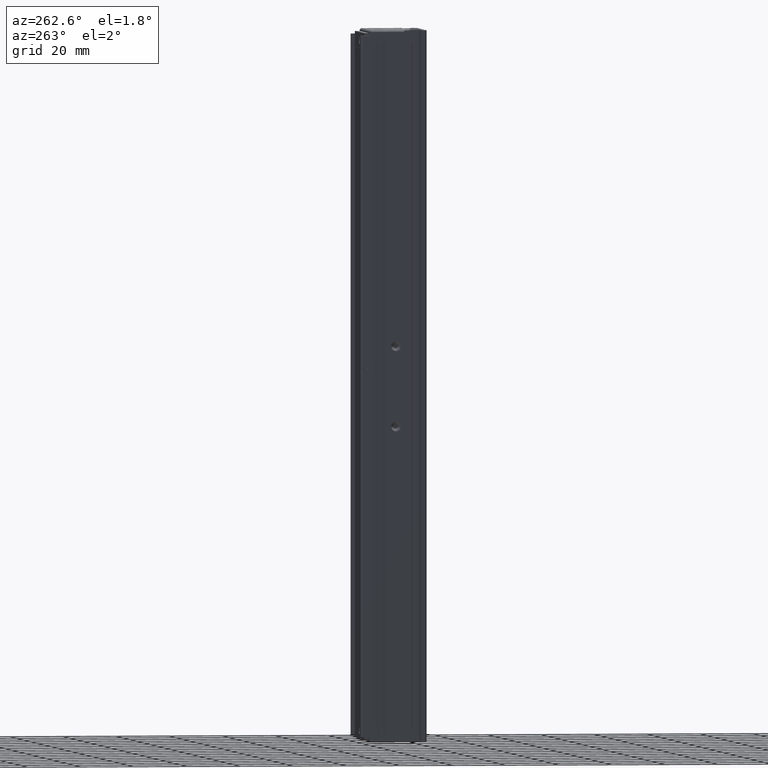
[diagram: clean part render]
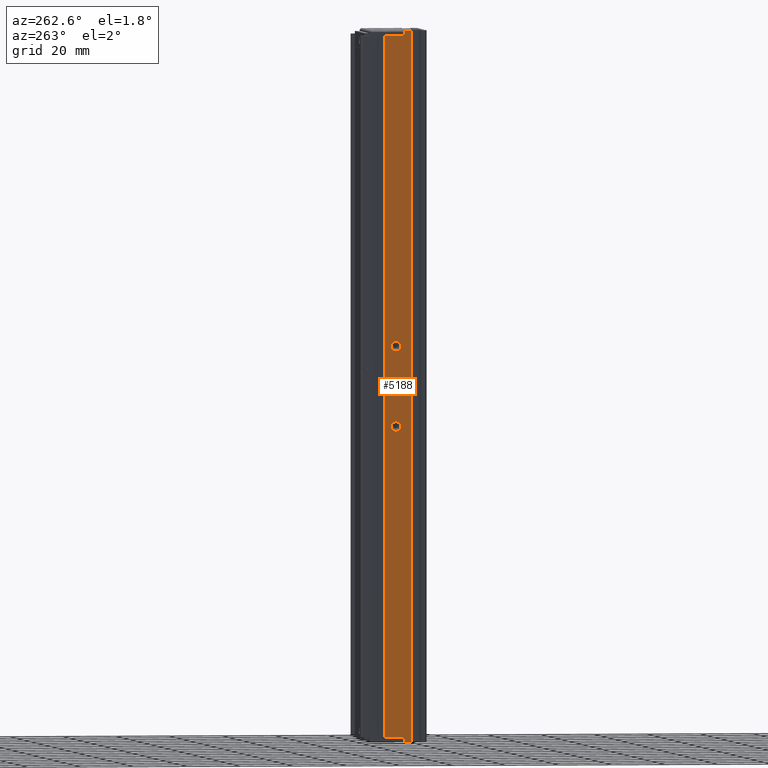
[diagram: same view with one face highlighted and labeled with its STEP entity id]
A machine part, auxiliary view. The second image highlights one B-rep face of the part: STEP entity #5188.
In plain terms, the highlighted planar face has unit normal (-1, 0, 0).
Its self-contained STEP definition (entity closure, byte-faithful):
#429 = CARTESIAN_POINT ( 'NONE',  ( 25.92537974684906700, 22.39594479660386700, -100.0000000000000000 ) ) ;
#459 = CARTESIAN_POINT ( 'NONE',  ( 25.92537974683541800, 19.19594479660386500, 18.00000000000000400 ) ) ;
#581 = DIRECTION ( 'NONE',  ( 0.0000000000000000000, 0.0000000000000000000, 1.000000000000000000 ) ) ;
#4492 = CARTESIAN_POINT ( 'NONE',  ( 25.92537974683541800, 26.69594479660386800, 18.00000000000000400 ) ) ;
#4675 = EDGE_CURVE ( 'NONE', #41065, #41264, #16763, .T. ) ;
#4743 = DIRECTION ( 'NONE',  ( 0.0000000000000000000, 0.0000000000000000000, 1.000000000000000000 ) ) ;
#5023 = AXIS2_PLACEMENT_3D ( 'NONE', #51852, #26229, #581 ) ;
#5188 = ADVANCED_FACE ( 'NONE', ( #54700, #30595, #9145 ), #14505, .T. ) ;
#5320 = VECTOR ( 'NONE', #16393, 1000.000000000000000 ) ;
#5327 = VERTEX_POINT ( 'NONE', #47865 ) ;
#5469 = AXIS2_PLACEMENT_3D ( 'NONE', #18955, #48870, #23227 ) ;
#5953 = VECTOR ( 'NONE', #20366, 1000.000000000000000 ) ;
#8775 = DIRECTION ( 'NONE',  ( -0.0000000000000000000, -0.0000000000000000000, -1.000000000000000000 ) ) ;
#9145 = FACE_BOUND ( 'NONE', #17623, .T. ) ;
#9699 = CARTESIAN_POINT ( 'NONE',  ( 25.92537974683541800, 7.083797468354437600, -248.0000000000000000 ) ) ;
#10662 = VERTEX_POINT ( 'NONE', #459 ) ;
#11270 = CARTESIAN_POINT ( 'NONE',  ( 25.92537974684906700, 22.39594479660386700, -98.20000000001073200 ) ) ;
#13320 = VERTEX_POINT ( 'NONE', #32572 ) ;
#14339 = VECTOR ( 'NONE', #44135, 1000.000000000000000 ) ;
#14505 = PLANE ( 'NONE',  #33808 ) ;
#15142 = EDGE_CURVE ( 'NONE', #41264, #5327, #24109, .T. ) ;
#15291 = DIRECTION ( 'NONE',  ( 0.0000000000000000000, 0.0000000000000000000, 1.000000000000000000 ) ) ;
#15453 = CARTESIAN_POINT ( 'NONE',  ( 25.92537974679222400, 22.39594479660386700, -131.8000000000734200 ) ) ;
#15717 = EDGE_CURVE ( 'NONE', #13320, #19591, #40140, .T. ) ;
#16071 = LINE ( 'NONE', #52136, #26056 ) ;
#16393 = DIRECTION ( 'NONE',  ( -0.0000000000000000000, -1.000000000000000000, 0.0000000000000000000 ) ) ;
#16763 = LINE ( 'NONE', #24086, #5320 ) ;
#17623 = EDGE_LOOP ( 'NONE', ( #40731, #31506 ) ) ;
#17881 = ORIENTED_EDGE ( 'NONE', *, *, #4675, .T. ) ;
#18190 = VERTEX_POINT ( 'NONE', #40833 ) ;
#18916 = CIRCLE ( 'NONE', #41594, 1.799999999989268400 ) ;
#18955 = CARTESIAN_POINT ( 'NONE',  ( 25.92537974679222400, 22.39594479660386700, -130.0000000000000000 ) ) ;
#19200 = CARTESIAN_POINT ( 'NONE',  ( 25.92537974684906700, 22.39594479660386700, -101.7999999999892700 ) ) ;
#19382 = CIRCLE ( 'NONE', #5023, 1.799999999989268400 ) ;
#19591 = VERTEX_POINT ( 'NONE', #39534 ) ;
#19749 = ORIENTED_EDGE ( 'NONE', *, *, #40513, .T. ) ;
#20366 = DIRECTION ( 'NONE',  ( 0.0000000000000000000, 0.0000000000000000000, 1.000000000000000000 ) ) ;
#20467 = LINE ( 'NONE', #38758, #40536 ) ;
#20602 = CARTESIAN_POINT ( 'NONE',  ( 25.92537974683541800, 16.49594479660387200, 18.00000000000000400 ) ) ;
#21220 = ORIENTED_EDGE ( 'NONE', *, *, #31855, .T. ) ;
#21269 = CARTESIAN_POINT ( 'NONE',  ( 25.92537974679222400, 22.39594479660386700, -130.0000000000000000 ) ) ;
#21525 = DIRECTION ( 'NONE',  ( 0.0000000000000000000, 1.000000000000000000, -0.0000000000000000000 ) ) ;
#21943 = VERTEX_POINT ( 'NONE', #11270 ) ;
#22257 = ORIENTED_EDGE ( 'NONE', *, *, #15142, .T. ) ;
#23227 = DIRECTION ( 'NONE',  ( 0.0000000000000000000, 0.0000000000000000000, 1.000000000000000000 ) ) ;
#23542 = VERTEX_POINT ( 'NONE', #15453 ) ;
#24086 = CARTESIAN_POINT ( 'NONE',  ( 25.92537974683541800, 7.083797468354437600, -246.0000000000000000 ) ) ;
#24109 = LINE ( 'NONE', #50836, #46876 ) ;
#24816 = CARTESIAN_POINT ( 'NONE',  ( 25.92537974683541800, 7.083797468354437600, 18.00000000000000400 ) ) ;
#25568 = DIRECTION ( 'NONE',  ( 0.0000000000000000000, 0.0000000000000000000, 1.000000000000000000 ) ) ;
#26056 = VECTOR ( 'NONE', #35273, 1000.000000000000000 ) ;
#26229 = DIRECTION ( 'NONE',  ( 1.000000000000000000, -0.0000000000000000000, -0.0000000000000000000 ) ) ;
#26376 = AXIS2_PLACEMENT_3D ( 'NONE', #21269, #51196, #25568 ) ;
#26938 = CIRCLE ( 'NONE', #26376, 1.800000000073409500 ) ;
#27344 = EDGE_CURVE ( 'NONE', #51611, #21943, #19382, .T. ) ;
#30119 = CARTESIAN_POINT ( 'NONE',  ( 25.92537974683541800, 7.083797468354437600, 18.00000000000000400 ) ) ;
#30356 = VECTOR ( 'NONE', #8775, 1000.000000000000000 ) ;
#30375 = DIRECTION ( 'NONE',  ( 1.000000000000000000, -0.0000000000000000000, -0.0000000000000000000 ) ) ;
#30595 = FACE_BOUND ( 'NONE', #32354, .T. ) ;
#31506 = ORIENTED_EDGE ( 'NONE', *, *, #44115, .T. ) ;
#31855 = EDGE_CURVE ( 'NONE', #5327, #13320, #37099, .T. ) ;
#32354 = EDGE_LOOP ( 'NONE', ( #51929, #40026 ) ) ;
#32572 = CARTESIAN_POINT ( 'NONE',  ( 25.92537974683541800, 16.49594479660387200, -248.0000000000000000 ) ) ;
#32827 = ORIENTED_EDGE ( 'NONE', *, *, #39601, .T. ) ;
#33004 = VERTEX_POINT ( 'NONE', #43259 ) ;
#33459 = EDGE_LOOP ( 'NONE', ( #50107, #32827, #19749, #33630, #17881, #22257, #21220, #52650 ) ) ;
#33630 = ORIENTED_EDGE ( 'NONE', *, *, #53843, .T. ) ;
#33808 = AXIS2_PLACEMENT_3D ( 'NONE', #24816, #36590, #15291 ) ;
#34191 = CARTESIAN_POINT ( 'NONE',  ( 25.92537974683541800, 26.69594479660386800, -246.0000000000000000 ) ) ;
#35273 = DIRECTION ( 'NONE',  ( 0.0000000000000000000, -0.0000000000000000000, -1.000000000000000000 ) ) ;
#35573 = CARTESIAN_POINT ( 'NONE',  ( 25.92537974683541800, 19.19594479660386500, -246.0000000000000000 ) ) ;
#36590 = DIRECTION ( 'NONE',  ( -1.000000000000000000, 0.0000000000000000000, 0.0000000000000000000 ) ) ;
#37099 = LINE ( 'NONE', #9699, #14339 ) ;
#37815 = EDGE_CURVE ( 'NONE', #45716, #23542, #55024, .T. ) ;
#38758 = CARTESIAN_POINT ( 'NONE',  ( 25.92537974683542100, 35.69594479660387500, 16.00000000000000000 ) ) ;
#39534 = CARTESIAN_POINT ( 'NONE',  ( 25.92537974683541800, 16.49594479660387200, 18.00000000000000400 ) ) ;
#39601 = EDGE_CURVE ( 'NONE', #10662, #18190, #16071, .T. ) ;
#39857 = VECTOR ( 'NONE', #21525, 1000.000000000000000 ) ;
#40026 = ORIENTED_EDGE ( 'NONE', *, *, #27344, .T. ) ;
#40140 = LINE ( 'NONE', #20602, #5953 ) ;
#40513 = EDGE_CURVE ( 'NONE', #18190, #33004, #20467, .T. ) ;
#40536 = VECTOR ( 'NONE', #47348, 1000.000000000000000 ) ;
#40731 = ORIENTED_EDGE ( 'NONE', *, *, #37815, .T. ) ;
#40833 = CARTESIAN_POINT ( 'NONE',  ( 25.92537974683541800, 19.19594479660386500, 16.00000000000000000 ) ) ;
#41065 = VERTEX_POINT ( 'NONE', #34191 ) ;
#41200 = LINE ( 'NONE', #30119, #39857 ) ;
#41264 = VERTEX_POINT ( 'NONE', #35573 ) ;
#41594 = AXIS2_PLACEMENT_3D ( 'NONE', #429, #30375, #4743 ) ;
#43098 = LINE ( 'NONE', #4492, #30356 ) ;
#43259 = CARTESIAN_POINT ( 'NONE',  ( 25.92537974683541800, 26.69594479660386800, 16.00000000000000000 ) ) ;
#43422 = EDGE_CURVE ( 'NONE', #19591, #10662, #41200, .T. ) ;
#44115 = EDGE_CURVE ( 'NONE', #23542, #45716, #26938, .T. ) ;
#44135 = DIRECTION ( 'NONE',  ( -0.0000000000000000000, -1.000000000000000000, 0.0000000000000000000 ) ) ;
#45716 = VERTEX_POINT ( 'NONE', #46706 ) ;
#46706 = CARTESIAN_POINT ( 'NONE',  ( 25.92537974679222400, 22.39594479660386700, -128.1999999999266000 ) ) ;
#46876 = VECTOR ( 'NONE', #52258, 1000.000000000000000 ) ;
#47348 = DIRECTION ( 'NONE',  ( 0.0000000000000000000, 1.000000000000000000, 0.0000000000000000000 ) ) ;
#47865 = CARTESIAN_POINT ( 'NONE',  ( 25.92537974683541800, 19.19594479660386500, -248.0000000000000000 ) ) ;
#48870 = DIRECTION ( 'NONE',  ( 1.000000000000000000, -0.0000000000000000000, -0.0000000000000000000 ) ) ;
#50107 = ORIENTED_EDGE ( 'NONE', *, *, #43422, .T. ) ;
#50836 = CARTESIAN_POINT ( 'NONE',  ( 25.92537974683542100, 19.19594479660386500, 18.00000000000000400 ) ) ;
#51196 = DIRECTION ( 'NONE',  ( 1.000000000000000000, -0.0000000000000000000, -0.0000000000000000000 ) ) ;
#51611 = VERTEX_POINT ( 'NONE', #19200 ) ;
#51852 = CARTESIAN_POINT ( 'NONE',  ( 25.92537974684906700, 22.39594479660386700, -100.0000000000000000 ) ) ;
#51929 = ORIENTED_EDGE ( 'NONE', *, *, #54573, .T. ) ;
#52136 = CARTESIAN_POINT ( 'NONE',  ( 25.92537974683541800, 19.19594479660386500, 18.00000000000000400 ) ) ;
#52258 = DIRECTION ( 'NONE',  ( 0.0000000000000000000, -0.0000000000000000000, -1.000000000000000000 ) ) ;
#52650 = ORIENTED_EDGE ( 'NONE', *, *, #15717, .T. ) ;
#53843 = EDGE_CURVE ( 'NONE', #33004, #41065, #43098, .T. ) ;
#54573 = EDGE_CURVE ( 'NONE', #21943, #51611, #18916, .T. ) ;
#54700 = FACE_OUTER_BOUND ( 'NONE', #33459, .T. ) ;
#55024 = CIRCLE ( 'NONE', #5469, 1.800000000073409500 ) ;